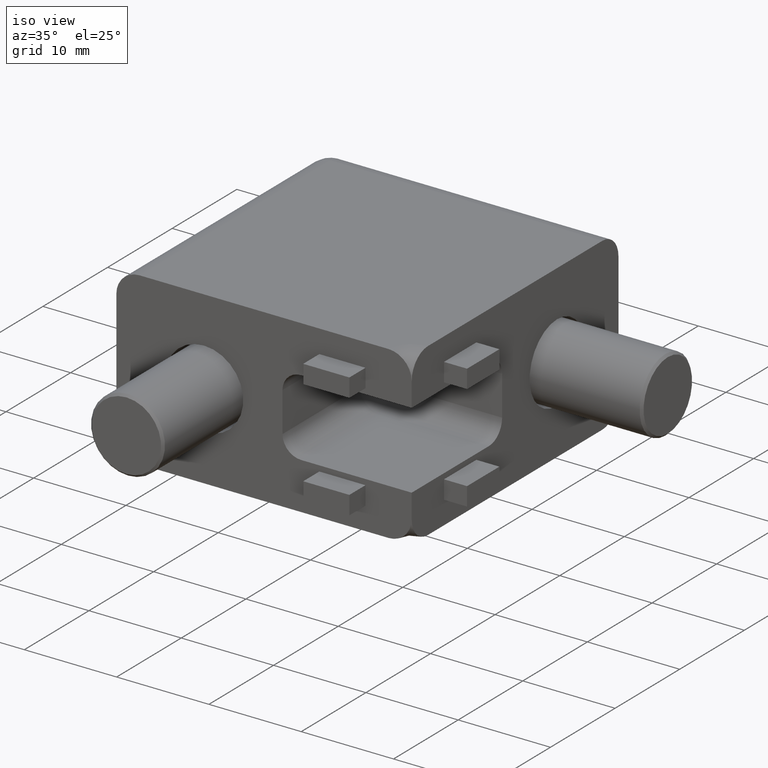
[diagram: clean part render]
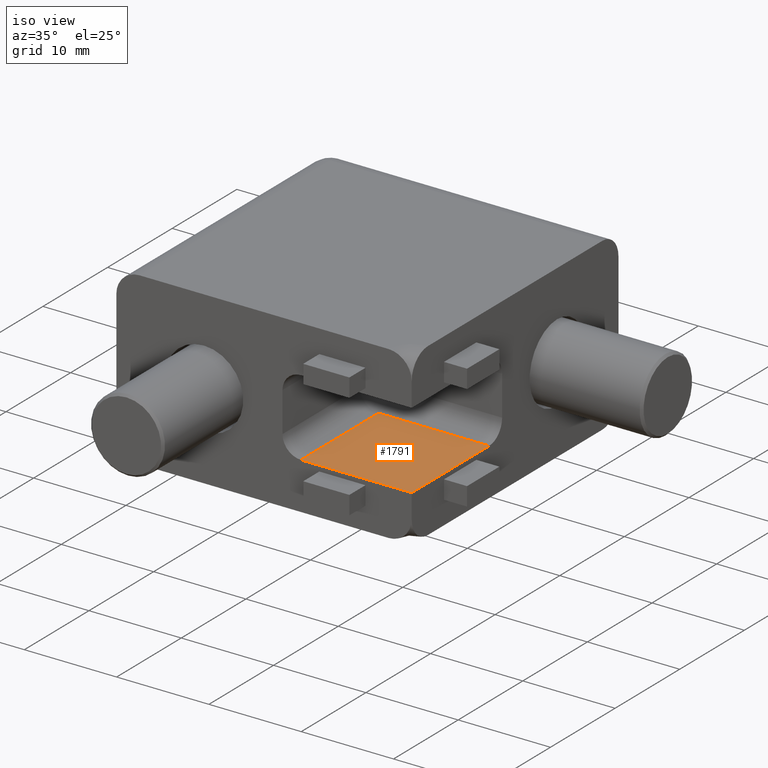
[diagram: same view with one face highlighted and labeled with its STEP entity id]
A machine part, iso view. The second image highlights one B-rep face of the part: STEP entity #1791.
In plain terms, the highlighted planar face has unit normal (-0, 0, -1).
Its self-contained STEP definition (entity closure, byte-faithful):
#59=PLANE('',#1968);
#153=FACE_OUTER_BOUND('',#274,.T.);
#274=EDGE_LOOP('',(#1359,#1360,#1361,#1362));
#400=LINE('',#2807,#574);
#424=LINE('',#2871,#598);
#438=LINE('',#2918,#612);
#439=LINE('',#2919,#613);
#574=VECTOR('',#2172,1000.);
#598=VECTOR('',#2226,1000.);
#612=VECTOR('',#2276,1000.);
#613=VECTOR('',#2277,1000.);
#833=VERTEX_POINT('',#2804);
#834=VERTEX_POINT('',#2806);
#859=VERTEX_POINT('',#2870);
#874=VERTEX_POINT('',#2917);
#1006=EDGE_CURVE('',#833,#834,#400,.T.);
#1039=EDGE_CURVE('',#859,#834,#424,.T.);
#1063=EDGE_CURVE('',#833,#874,#438,.T.);
#1064=EDGE_CURVE('',#874,#859,#439,.T.);
#1359=ORIENTED_EDGE('',*,*,#1006,.F.);
#1360=ORIENTED_EDGE('',*,*,#1063,.T.);
#1361=ORIENTED_EDGE('',*,*,#1064,.T.);
#1362=ORIENTED_EDGE('',*,*,#1039,.T.);
#1791=ADVANCED_FACE('',(#153),#59,.F.);
#1968=AXIS2_PLACEMENT_3D('',#2916,#2274,#2275);
#2172=DIRECTION('',(0.,-1.,0.));
#2226=DIRECTION('',(1.,0.,-1.23908819712629E-16));
#2274=DIRECTION('center_axis',(-1.23908819712629E-16,0.,-1.));
#2275=DIRECTION('ref_axis',(-1.,0.,1.23908819712629E-16));
#2276=DIRECTION('',(-1.,0.,1.23908819712629E-16));
#2277=DIRECTION('',(0.,-1.,0.));
#2804=CARTESIAN_POINT('',(16.7248569721971,-1.94771435504495,-4.15));
#2806=CARTESIAN_POINT('',(16.7248569721971,-13.947714355045,-4.15));
#2807=CARTESIAN_POINT('',(16.7248569721971,0.0522856449550502,-4.15));
#2870=CARTESIAN_POINT('',(4.72485697219708,-13.947714355045,-4.15));
#2871=CARTESIAN_POINT('',(16.7248569721971,-13.947714355045,-4.15));
#2916=CARTESIAN_POINT('Origin',(16.7248569721971,0.0522856449550502,-4.15));
#2917=CARTESIAN_POINT('',(4.72485697219707,-1.94771435504495,-4.15));
#2918=CARTESIAN_POINT('',(16.7248569721971,-1.94771435504495,-4.15));
#2919=CARTESIAN_POINT('',(4.72485697219707,-13.947714355045,-4.15));